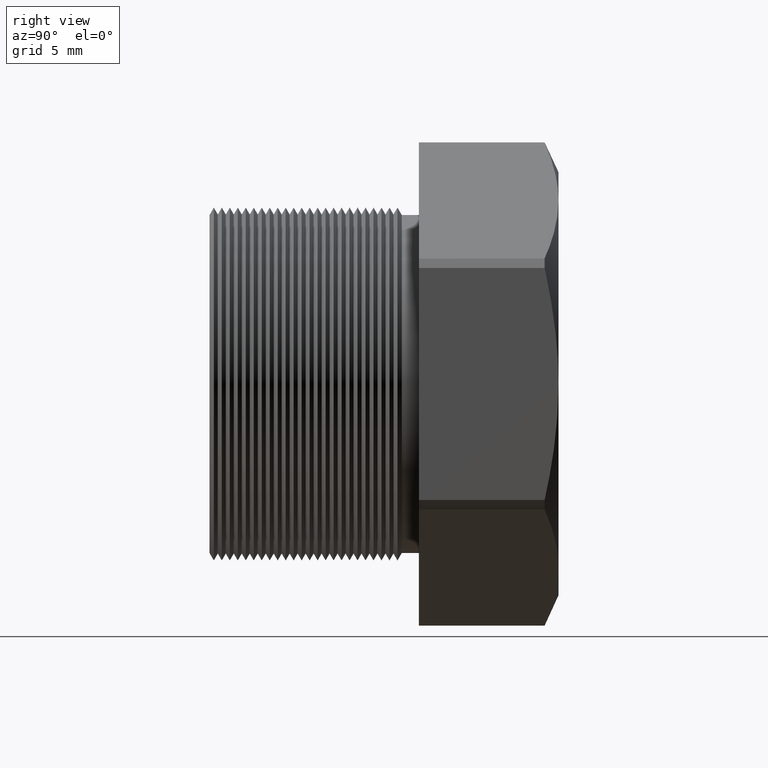
[diagram: clean part render]
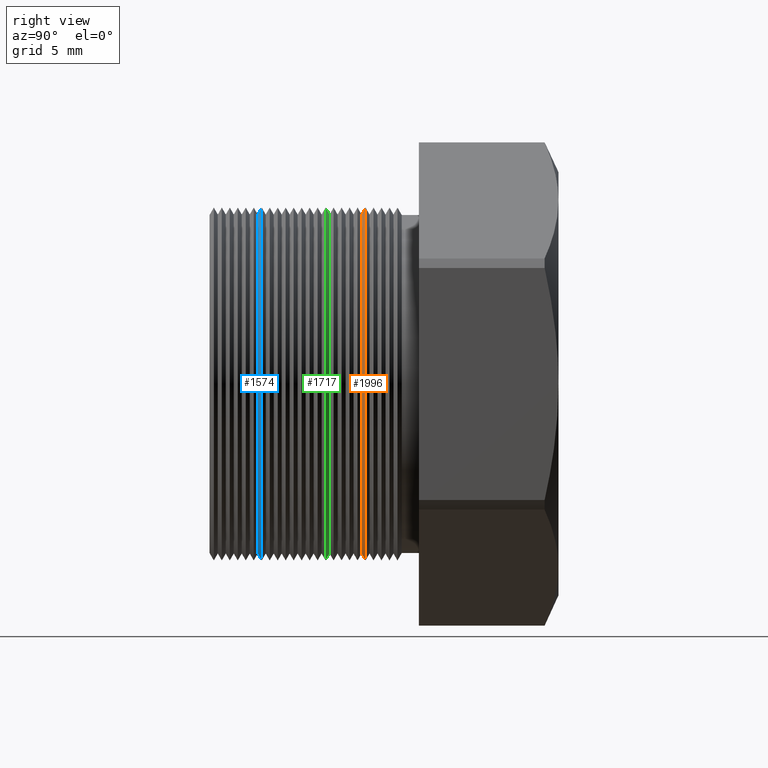
[diagram: same view with three faces highlighted in distinct colors, each labeled with its STEP entity id]
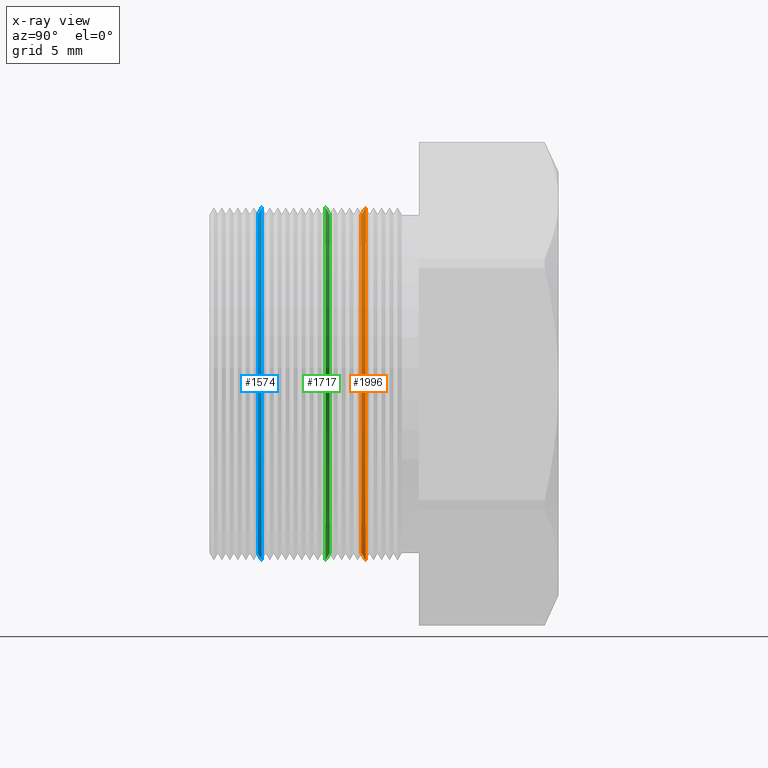
[diagram: x-ray of the same camera — body ghosted, the three highlighted faces saturated]
A machine part, right view with three faces highlighted in distinct colors.
The next image is the same camera in x-ray (body ghosted, the three faces saturated) — at least one of them is partly hidden behind the body in this view.
Their STEP definitions:

[orange] entity #1996 — the highlighted conical surface has half-angle 60 deg.
#1920 = EDGE_CURVE ( 'NONE', #1989, #1921, #5915, .T. ) ;
#1921 = VERTEX_POINT ( 'NONE', #5911 ) ;
#1922 = VERTEX_POINT ( 'NONE', #5910 ) ;
#1938 = EDGE_CURVE ( 'NONE', #1989, #1990, #5942, .T. ) ;
#1975 = ORIENTED_EDGE ( 'NONE', *, *, #1976, .F. ) ;
#1976 = EDGE_CURVE ( 'NONE', #1922, #1921, #5988, .T. ) ;
#1977 = ORIENTED_EDGE ( 'NONE', *, *, #1978, .F. ) ;
#1978 = EDGE_CURVE ( 'NONE', #1990, #1922, #5978, .T. ) ;
#1989 = VERTEX_POINT ( 'NONE', #6019 ) ;
#1990 = VERTEX_POINT ( 'NONE', #6018 ) ;
#1996 = ADVANCED_FACE ( 'NONE', ( #6009 ), #6072, .T. ) ;
#1997 = EDGE_LOOP ( 'NONE', ( #1998, #1999, #1975, #1977 ) ) ;
#1998 = ORIENTED_EDGE ( 'NONE', *, *, #1938, .F. ) ;
#1999 = ORIENTED_EDGE ( 'NONE', *, *, #1920, .T. ) ;
#5910 = CARTESIAN_POINT ( 'NONE',  ( 4.026318816969966800E-017, 0.04803489058294796400, 0.3287738815610546900 ) ) ;
#5911 = CARTESIAN_POINT ( 'NONE',  ( 0.0000000000000000000, 0.04803489058294796400, -0.3287738815610546900 ) ) ;
#5912 = DIRECTION ( 'NONE',  ( 1.060575238724910100E-016, 0.4999999999999956700, -0.8660254037844411500 ) ) ;
#5913 = VECTOR ( 'NONE', #5912, 39.37007874015748100 ) ;
#5914 = CARTESIAN_POINT ( 'NONE',  ( 4.026318816969966200E-017, 0.04803489058294796400, -0.3287738815610546900 ) ) ;
#5915 = LINE ( 'NONE', #5914, #5913 ) ;
#5935 = DIRECTION ( 'NONE',  ( 0.0000000000000000000, 0.0000000000000000000, -1.000000000000000000 ) ) ;
#5936 = DIRECTION ( 'NONE',  ( 0.0000000000000000000, -1.000000000000000000, 0.0000000000000000000 ) ) ;
#5937 = CARTESIAN_POINT ( 'NONE',  ( 0.0000000000000000000, 0.04059489058294805900, 0.0000000000000000000 ) ) ;
#5938 = AXIS2_PLACEMENT_3D ( 'NONE', #5937, #5936, #5935 ) ;
#5942 = CIRCLE ( 'NONE', #5938, 0.3158874235527422400 ) ;
#5975 = DIRECTION ( 'NONE',  ( 0.0000000000000000000, 0.4999999999999956700, 0.8660254037844411500 ) ) ;
#5976 = VECTOR ( 'NONE', #5975, 39.37007874015748100 ) ;
#5977 = CARTESIAN_POINT ( 'NONE',  ( 0.0000000000000000000, 0.04803489058294796400, 0.3287738815610546900 ) ) ;
#5978 = LINE ( 'NONE', #5977, #5976 ) ;
#5979 = DIRECTION ( 'NONE',  ( 0.0000000000000000000, 0.0000000000000000000, 1.000000000000000000 ) ) ;
#5980 = DIRECTION ( 'NONE',  ( -0.0000000000000000000, 1.000000000000000000, -0.0000000000000000000 ) ) ;
#5981 = CARTESIAN_POINT ( 'NONE',  ( 0.0000000000000000000, 0.04803489058294796400, 0.0000000000000000000 ) ) ;
#5982 = AXIS2_PLACEMENT_3D ( 'NONE', #5981, #5980, #5979 ) ;
#5988 = CIRCLE ( 'NONE', #5982, 0.3287738815610546900 ) ;
#6009 = FACE_OUTER_BOUND ( 'NONE', #1997, .T. ) ;
#6018 = CARTESIAN_POINT ( 'NONE',  ( 0.0000000000000000000, 0.04059489058294805900, 0.3158874235527422400 ) ) ;
#6019 = CARTESIAN_POINT ( 'NONE',  ( 3.947412019208833400E-017, 0.04059489058294805900, -0.3158874235527422400 ) ) ;
#6068 = DIRECTION ( 'NONE',  ( 0.0000000000000000000, 0.0000000000000000000, 1.000000000000000000 ) ) ;
#6069 = DIRECTION ( 'NONE',  ( -0.0000000000000000000, 1.000000000000000000, -0.0000000000000000000 ) ) ;
#6070 = CARTESIAN_POINT ( 'NONE',  ( 0.0000000000000000000, 0.04803489058294796400, 0.0000000000000000000 ) ) ;
#6071 = AXIS2_PLACEMENT_3D ( 'NONE', #6070, #6069, #6068 ) ;
#6072 = CONICAL_SURFACE ( 'NONE', #6071, 0.3287738815610546900, 1.047197551196602700 ) ;

[blue] entity #1574 — the highlighted conical surface has half-angle 60 deg.
#1513 = EDGE_CURVE ( 'NONE', #1514, #1515, #5051, .T. ) ;
#1514 = VERTEX_POINT ( 'NONE', #5041 ) ;
#1515 = VERTEX_POINT ( 'NONE', #5105 ) ;
#1554 = VERTEX_POINT ( 'NONE', #5154 ) ;
#1555 = ORIENTED_EDGE ( 'NONE', *, *, #1556, .F. ) ;
#1556 = EDGE_CURVE ( 'NONE', #1515, #1554, #5152, .T. ) ;
#1574 = ADVANCED_FACE ( 'NONE', ( #5176 ), #5175, .T. ) ;
#1575 = EDGE_LOOP ( 'NONE', ( #1576, #1577, #1580, #1555 ) ) ;
#1576 = ORIENTED_EDGE ( 'NONE', *, *, #1513, .F. ) ;
#1577 = ORIENTED_EDGE ( 'NONE', *, *, #1578, .T. ) ;
#1578 = EDGE_CURVE ( 'NONE', #1514, #1579, #5235, .T. ) ;
#1579 = VERTEX_POINT ( 'NONE', #5231 ) ;
#1580 = ORIENTED_EDGE ( 'NONE', *, *, #1581, .F. ) ;
#1581 = EDGE_CURVE ( 'NONE', #1554, #1579, #5230, .T. ) ;
#5041 = CARTESIAN_POINT ( 'NONE',  ( 3.947412019208833400E-017, -0.1528451094170519800, -0.3158874235527422400 ) ) ;
#5042 = DIRECTION ( 'NONE',  ( 0.0000000000000000000, 0.0000000000000000000, -1.000000000000000000 ) ) ;
#5043 = DIRECTION ( 'NONE',  ( 0.0000000000000000000, -1.000000000000000000, 0.0000000000000000000 ) ) ;
#5044 = CARTESIAN_POINT ( 'NONE',  ( 0.0000000000000000000, -0.1528451094170519800, 0.0000000000000000000 ) ) ;
#5045 = AXIS2_PLACEMENT_3D ( 'NONE', #5044, #5043, #5042 ) ;
#5051 = CIRCLE ( 'NONE', #5045, 0.3158874235527422400 ) ;
#5105 = CARTESIAN_POINT ( 'NONE',  ( 0.0000000000000000000, -0.1528451094170519800, 0.3158874235527422400 ) ) ;
#5148 = DIRECTION ( 'NONE',  ( 0.0000000000000000000, 0.4999999999999956700, 0.8660254037844411500 ) ) ;
#5149 = VECTOR ( 'NONE', #5148, 39.37007874015748100 ) ;
#5150 = CARTESIAN_POINT ( 'NONE',  ( 0.0000000000000000000, -0.1454051094170520600, 0.3287738815610546900 ) ) ;
#5152 = LINE ( 'NONE', #5150, #5149 ) ;
#5154 = CARTESIAN_POINT ( 'NONE',  ( 4.026318816969966800E-017, -0.1454051094170520600, 0.3287738815610546900 ) ) ;
#5173 = CARTESIAN_POINT ( 'NONE',  ( 0.0000000000000000000, -0.1454051094170520600, 0.0000000000000000000 ) ) ;
#5174 = AXIS2_PLACEMENT_3D ( 'NONE', #5173, #5237, #5236 ) ;
#5175 = CONICAL_SURFACE ( 'NONE', #5174, 0.3287738815610546900, 1.047197551196602700 ) ;
#5176 = FACE_OUTER_BOUND ( 'NONE', #1575, .T. ) ;
#5226 = DIRECTION ( 'NONE',  ( 0.0000000000000000000, 0.0000000000000000000, 1.000000000000000000 ) ) ;
#5227 = DIRECTION ( 'NONE',  ( -0.0000000000000000000, 1.000000000000000000, -0.0000000000000000000 ) ) ;
#5228 = CARTESIAN_POINT ( 'NONE',  ( 0.0000000000000000000, -0.1454051094170520600, 0.0000000000000000000 ) ) ;
#5229 = AXIS2_PLACEMENT_3D ( 'NONE', #5228, #5227, #5226 ) ;
#5230 = CIRCLE ( 'NONE', #5229, 0.3287738815610546900 ) ;
#5231 = CARTESIAN_POINT ( 'NONE',  ( 0.0000000000000000000, -0.1454051094170520600, -0.3287738815610546900 ) ) ;
#5232 = DIRECTION ( 'NONE',  ( 1.060575238724910100E-016, 0.4999999999999956700, -0.8660254037844411500 ) ) ;
#5233 = VECTOR ( 'NONE', #5232, 39.37007874015748100 ) ;
#5234 = CARTESIAN_POINT ( 'NONE',  ( 4.026318816969966200E-017, -0.1454051094170520600, -0.3287738815610546900 ) ) ;
#5235 = LINE ( 'NONE', #5234, #5233 ) ;
#5236 = DIRECTION ( 'NONE',  ( 0.0000000000000000000, 0.0000000000000000000, 1.000000000000000000 ) ) ;
#5237 = DIRECTION ( 'NONE',  ( -0.0000000000000000000, 1.000000000000000000, -0.0000000000000000000 ) ) ;

[green] entity #1717 — the highlighted conical surface has half-angle 60 deg.
#1713 = EDGE_CURVE ( 'NONE', #1714, #1792, #5489, .T. ) ;
#1714 = VERTEX_POINT ( 'NONE', #5484 ) ;
#1717 = ADVANCED_FACE ( 'NONE', ( #5479 ), #5477, .T. ) ;
#1718 = EDGE_LOOP ( 'NONE', ( #1719, #1775, #1777, #1778 ) ) ;
#1719 = ORIENTED_EDGE ( 'NONE', *, *, #1720, .T. ) ;
#1720 = EDGE_CURVE ( 'NONE', #1721, #1722, #5478, .T. ) ;
#1721 = VERTEX_POINT ( 'NONE', #5468 ) ;
#1722 = VERTEX_POINT ( 'NONE', #5467 ) ;
#1775 = ORIENTED_EDGE ( 'NONE', *, *, #1776, .T. ) ;
#1776 = EDGE_CURVE ( 'NONE', #1722, #1714, #5614, .T. ) ;
#1777 = ORIENTED_EDGE ( 'NONE', *, *, #1713, .T. ) ;
#1778 = ORIENTED_EDGE ( 'NONE', *, *, #1779, .F. ) ;
#1779 = EDGE_CURVE ( 'NONE', #1721, #1792, #5610, .T. ) ;
#1792 = VERTEX_POINT ( 'NONE', #5649 ) ;
#5467 = CARTESIAN_POINT ( 'NONE',  ( 0.0000000000000000000, -0.01892510941705194100, 0.3158874235527422400 ) ) ;
#5468 = CARTESIAN_POINT ( 'NONE',  ( 3.947412019208833400E-017, -0.01892510941705194100, -0.3158874235527422400 ) ) ;
#5469 = DIRECTION ( 'NONE',  ( 0.0000000000000000000, 0.0000000000000000000, -1.000000000000000000 ) ) ;
#5470 = DIRECTION ( 'NONE',  ( 0.0000000000000000000, -1.000000000000000000, 0.0000000000000000000 ) ) ;
#5471 = CARTESIAN_POINT ( 'NONE',  ( 0.0000000000000000000, -0.01892510941705194100, 0.0000000000000000000 ) ) ;
#5472 = AXIS2_PLACEMENT_3D ( 'NONE', #5471, #5470, #5469 ) ;
#5473 = DIRECTION ( 'NONE',  ( 0.0000000000000000000, 0.0000000000000000000, -1.000000000000000000 ) ) ;
#5474 = DIRECTION ( 'NONE',  ( 0.0000000000000000000, -1.000000000000000000, 0.0000000000000000000 ) ) ;
#5475 = CARTESIAN_POINT ( 'NONE',  ( 0.0000000000000000000, -0.01841275518999106400, 0.0000000000000000000 ) ) ;
#5476 = AXIS2_PLACEMENT_3D ( 'NONE', #5475, #5474, #5473 ) ;
#5477 = CONICAL_SURFACE ( 'NONE', #5476, 0.3150000000000000600, 1.047197551196595000 ) ;
#5478 = CIRCLE ( 'NONE', #5472, 0.3158874235527422400 ) ;
#5479 = FACE_OUTER_BOUND ( 'NONE', #1718, .T. ) ;
#5484 = CARTESIAN_POINT ( 'NONE',  ( 4.026318816969966800E-017, -0.02636510941705204300, 0.3287738815610546900 ) ) ;
#5485 = DIRECTION ( 'NONE',  ( 0.0000000000000000000, 0.0000000000000000000, 1.000000000000000000 ) ) ;
#5486 = DIRECTION ( 'NONE',  ( -0.0000000000000000000, 1.000000000000000000, -0.0000000000000000000 ) ) ;
#5487 = CARTESIAN_POINT ( 'NONE',  ( 0.0000000000000000000, -0.02636510941705204300, 0.0000000000000000000 ) ) ;
#5488 = AXIS2_PLACEMENT_3D ( 'NONE', #5487, #5486, #5485 ) ;
#5489 = CIRCLE ( 'NONE', #5488, 0.3287738815610546900 ) ;
#5606 = DIRECTION ( 'NONE',  ( 0.0000000000000000000, -0.5000000000000023300, -0.8660254037844371500 ) ) ;
#5608 = VECTOR ( 'NONE', #5606, 39.37007874015748900 ) ;
#5609 = CARTESIAN_POINT ( 'NONE',  ( 0.0000000000000000000, -0.01841275518999106400, -0.3150000000000000600 ) ) ;
#5610 = LINE ( 'NONE', #5609, #5608 ) ;
#5611 = DIRECTION ( 'NONE',  ( 1.060575238724905100E-016, -0.5000000000000023300, 0.8660254037844371500 ) ) ;
#5612 = VECTOR ( 'NONE', #5611, 39.37007874015748900 ) ;
#5613 = CARTESIAN_POINT ( 'NONE',  ( 3.857637417314163300E-017, -0.01841275518999106400, 0.3150000000000000600 ) ) ;
#5614 = LINE ( 'NONE', #5613, #5612 ) ;
#5649 = CARTESIAN_POINT ( 'NONE',  ( 0.0000000000000000000, -0.02636510941705204300, -0.3287738815610546900 ) ) ;